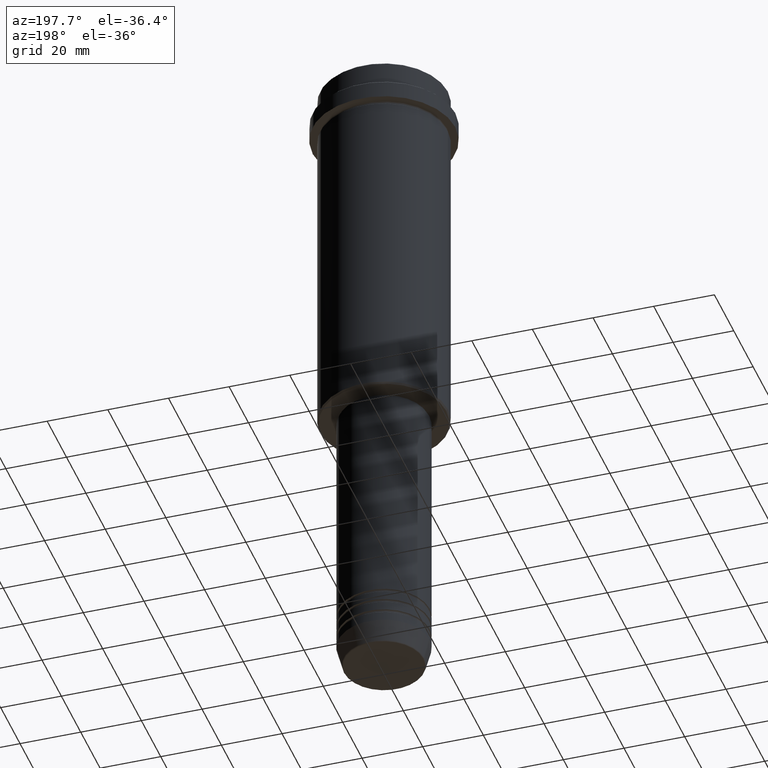
[diagram: clean part render]
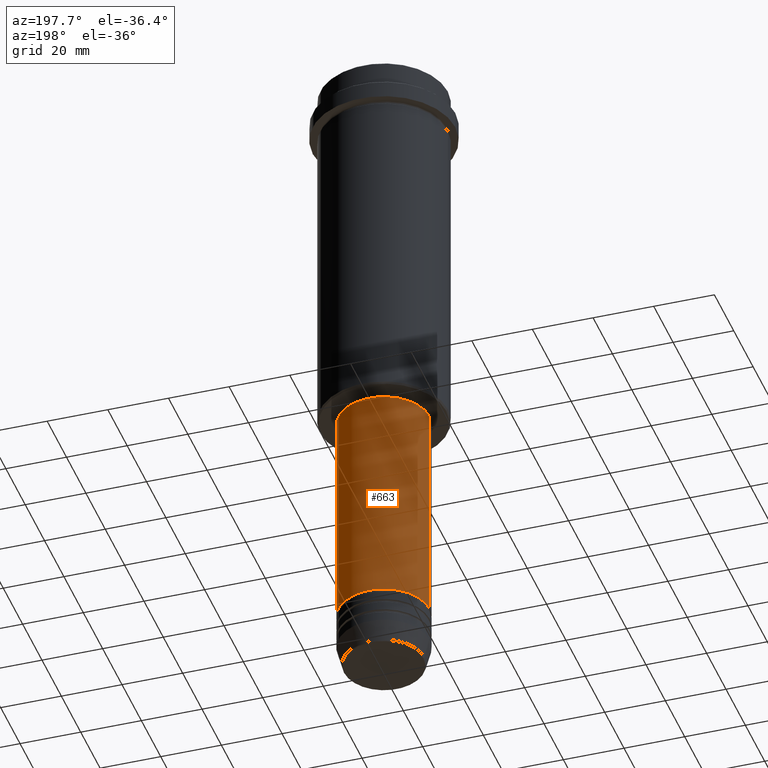
[diagram: same view with one face highlighted and labeled with its STEP entity id]
A machine part, auxiliary view. The second image highlights one B-rep face of the part: STEP entity #663.
In plain terms, the highlighted cylindrical surface (partial cylindrical patch) has radius 15 mm, axis along (-0, -0, 1).
Its self-contained STEP definition (entity closure, byte-faithful):
#2 = DIRECTION ( 'NONE',  ( -0.000000000000000000, -0.000000000000000000, 1.000000000000000000 ) ) ;
#7 = EDGE_CURVE ( 'NONE', #1275, #435, #1306, .T. ) ;
#22 = LINE ( 'NONE', #361, #966 ) ;
#63 = EDGE_CURVE ( 'NONE', #568, #1207, #22, .T. ) ;
#98 = EDGE_CURVE ( 'NONE', #435, #1207, #581, .T. ) ;
#102 = AXIS2_PLACEMENT_3D ( 'NONE', #906, #673, #557 ) ;
#212 = ORIENTED_EDGE ( 'NONE', *, *, #63, .T. ) ;
#223 = EDGE_LOOP ( 'NONE', ( #1396, #212, #870, #732 ) ) ;
#258 = CARTESIAN_POINT ( 'NONE',  ( 0.000000000000000000, 0.000000000000000000, -200.9999999999999147 ) ) ;
#265 = AXIS2_PLACEMENT_3D ( 'NONE', #310, #417, #650 ) ;
#310 = CARTESIAN_POINT ( 'NONE',  ( 0.000000000000000000, 0.000000000000000000, 0.000000000000000000 ) ) ;
#361 = CARTESIAN_POINT ( 'NONE',  ( -15.00000000000000000, 1.836970198721029589E-15, 0.000000000000000000 ) ) ;
#414 = CARTESIAN_POINT ( 'NONE',  ( -15.00000000000000000, 1.836970198721029589E-15, -126.0000000000000000 ) ) ;
#417 = DIRECTION ( 'NONE',  ( -0.000000000000000000, -0.000000000000000000, 1.000000000000000000 ) ) ;
#435 = VERTEX_POINT ( 'NONE', #687 ) ;
#436 = FACE_OUTER_BOUND ( 'NONE', #223, .T. ) ;
#541 = CARTESIAN_POINT ( 'NONE',  ( 15.00000000000000000, 0.000000000000000000, 0.000000000000000000 ) ) ;
#549 = EDGE_CURVE ( 'NONE', #1275, #568, #1127, .T. ) ;
#557 = DIRECTION ( 'NONE',  ( 1.000000000000000000, 0.000000000000000000, 0.000000000000000000 ) ) ;
#568 = VERTEX_POINT ( 'NONE', #831 ) ;
#581 = CIRCLE ( 'NONE', #102, 15.00000000000000000 ) ;
#650 = DIRECTION ( 'NONE',  ( 1.000000000000000000, 0.000000000000000000, 0.000000000000000000 ) ) ;
#663 = ADVANCED_FACE ( 'NONE', ( #436 ), #1182, .T. ) ;
#673 = DIRECTION ( 'NONE',  ( -0.000000000000000000, -0.000000000000000000, 1.000000000000000000 ) ) ;
#687 = CARTESIAN_POINT ( 'NONE',  ( 15.00000000000000000, 0.000000000000000000, -126.0000000000000000 ) ) ;
#732 = ORIENTED_EDGE ( 'NONE', *, *, #7, .F. ) ;
#831 = CARTESIAN_POINT ( 'NONE',  ( -15.00000000000000000, 1.836970198721029589E-15, -200.9999999999999147 ) ) ;
#870 = ORIENTED_EDGE ( 'NONE', *, *, #98, .F. ) ;
#906 = CARTESIAN_POINT ( 'NONE',  ( 0.000000000000000000, 0.000000000000000000, -126.0000000000000000 ) ) ;
#966 = VECTOR ( 'NONE', #1225, 1000.000000000000000 ) ;
#1127 = CIRCLE ( 'NONE', #1313, 15.00000000000000000 ) ;
#1150 = VECTOR ( 'NONE', #2, 1000.000000000000000 ) ;
#1182 = CYLINDRICAL_SURFACE ( 'NONE', #265, 15.00000000000000000 ) ;
#1207 = VERTEX_POINT ( 'NONE', #414 ) ;
#1225 = DIRECTION ( 'NONE',  ( -0.000000000000000000, -0.000000000000000000, 1.000000000000000000 ) ) ;
#1246 = CARTESIAN_POINT ( 'NONE',  ( 15.00000000000000000, 0.000000000000000000, -200.9999999999999147 ) ) ;
#1265 = DIRECTION ( 'NONE',  ( -0.000000000000000000, -0.000000000000000000, 1.000000000000000000 ) ) ;
#1275 = VERTEX_POINT ( 'NONE', #1246 ) ;
#1306 = LINE ( 'NONE', #541, #1150 ) ;
#1313 = AXIS2_PLACEMENT_3D ( 'NONE', #258, #1265, #1380 ) ;
#1380 = DIRECTION ( 'NONE',  ( 1.000000000000000000, 0.000000000000000000, 0.000000000000000000 ) ) ;
#1396 = ORIENTED_EDGE ( 'NONE', *, *, #549, .T. ) ;